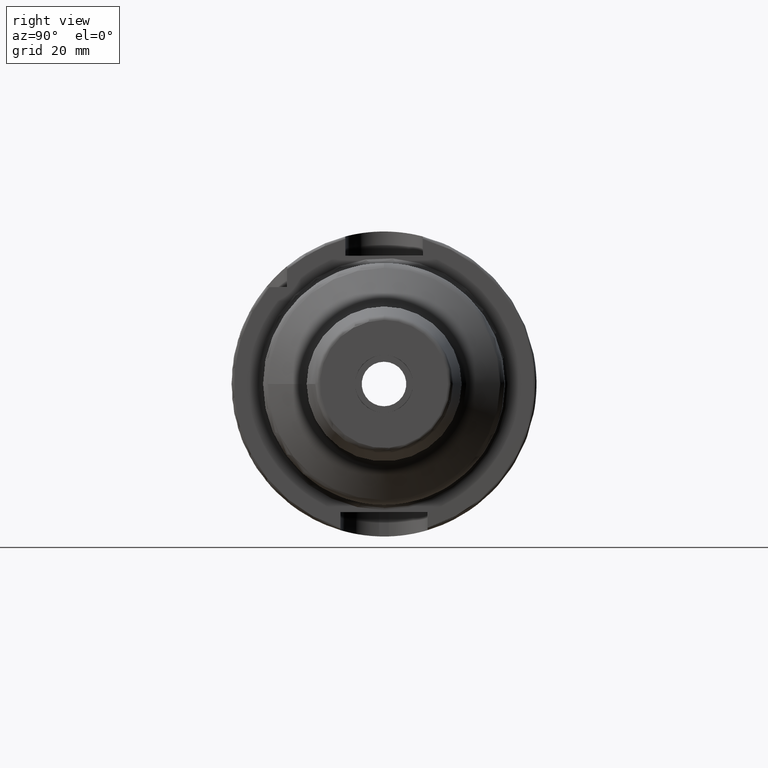
[diagram: clean part render]
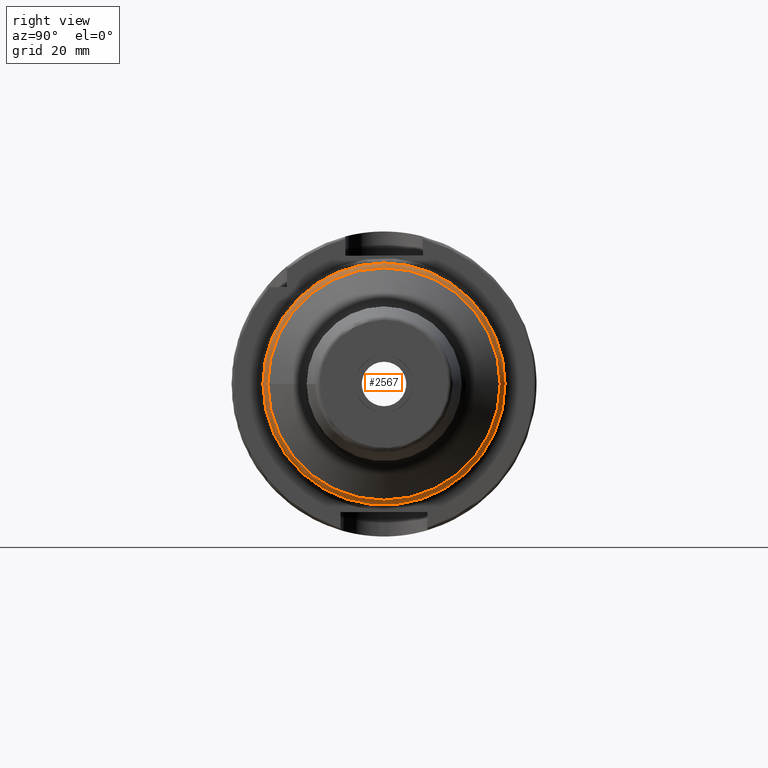
[diagram: same view with one face highlighted and labeled with its STEP entity id]
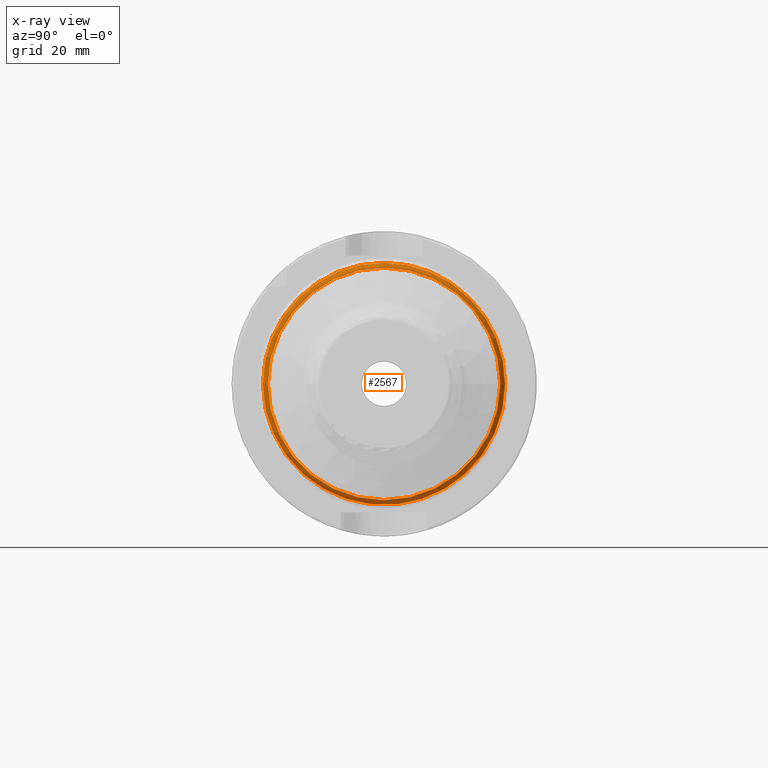
[diagram: x-ray of the same camera — body ghosted, the highlighted face saturated]
A machine part, right view. The second image highlights one B-rep face of the part: STEP entity #2567.
The next image is the same camera in x-ray: the body ghosted, the highlighted face saturated — about 0% of this face is hidden behind the body in this view.
In plain terms, the highlighted toroidal blend (fillet) surface has major radius 23 mm and minor (blend) radius 2 mm.
Its self-contained STEP definition (entity closure, byte-faithful):
#98=TOROIDAL_SURFACE('',#2749,23.,2.);
#213=FACE_OUTER_BOUND('',#351,.T.);
#351=EDGE_LOOP('',(#1724,#1725,#1726,#1727,#1728,#1729,#1730,#1731));
#741=CIRCLE('',#2742,24.);
#742=CIRCLE('',#2743,24.);
#743=CIRCLE('',#2744,24.);
#747=CIRCLE('',#2750,2.);
#748=CIRCLE('',#2751,25.);
#749=CIRCLE('',#2752,25.);
#750=CIRCLE('',#2753,25.);
#968=VERTEX_POINT('',#3995);
#969=VERTEX_POINT('',#3997);
#970=VERTEX_POINT('',#3999);
#974=VERTEX_POINT('',#4011);
#975=VERTEX_POINT('',#4013);
#976=VERTEX_POINT('',#4015);
#1270=EDGE_CURVE('',#969,#968,#741,.T.);
#1271=EDGE_CURVE('',#970,#969,#742,.T.);
#1272=EDGE_CURVE('',#968,#970,#743,.T.);
#1277=EDGE_CURVE('',#970,#974,#747,.T.);
#1278=EDGE_CURVE('',#974,#975,#748,.T.);
#1279=EDGE_CURVE('',#975,#976,#749,.T.);
#1280=EDGE_CURVE('',#976,#974,#750,.T.);
#1724=ORIENTED_EDGE('',*,*,#1270,.T.);
#1725=ORIENTED_EDGE('',*,*,#1272,.T.);
#1726=ORIENTED_EDGE('',*,*,#1277,.T.);
#1727=ORIENTED_EDGE('',*,*,#1278,.T.);
#1728=ORIENTED_EDGE('',*,*,#1279,.T.);
#1729=ORIENTED_EDGE('',*,*,#1280,.T.);
#1730=ORIENTED_EDGE('',*,*,#1277,.F.);
#1731=ORIENTED_EDGE('',*,*,#1271,.T.);
#2567=ADVANCED_FACE('',(#213),#98,.T.);
#2742=AXIS2_PLACEMENT_3D('',#3998,#3147,#3148);
#2743=AXIS2_PLACEMENT_3D('',#4000,#3149,#3150);
#2744=AXIS2_PLACEMENT_3D('',#4001,#3151,#3152);
#2749=AXIS2_PLACEMENT_3D('',#4010,#3162,#3163);
#2750=AXIS2_PLACEMENT_3D('',#4012,#3164,#3165);
#2751=AXIS2_PLACEMENT_3D('',#4014,#3166,#3167);
#2752=AXIS2_PLACEMENT_3D('',#4016,#3168,#3169);
#2753=AXIS2_PLACEMENT_3D('',#4017,#3170,#3171);
#3147=DIRECTION('center_axis',(-1.,0.,0.));
#3148=DIRECTION('ref_axis',(0.,-1.,3.06161699786838E-17));
#3149=DIRECTION('center_axis',(-1.,0.,0.));
#3150=DIRECTION('ref_axis',(0.,-1.,3.06161699786838E-17));
#3151=DIRECTION('center_axis',(-1.,0.,0.));
#3152=DIRECTION('ref_axis',(0.,-1.,3.06161699786838E-17));
#3162=DIRECTION('center_axis',(1.,0.,0.));
#3163=DIRECTION('ref_axis',(0.,0.,-1.));
#3164=DIRECTION('center_axis',(0.,-1.,-1.22464679914735E-16));
#3165=DIRECTION('ref_axis',(0.,-1.22464679914735E-16,1.));
#3166=DIRECTION('center_axis',(1.,0.,0.));
#3167=DIRECTION('ref_axis',(0.,-1.,1.83697019872103E-16));
#3168=DIRECTION('center_axis',(1.,0.,0.));
#3169=DIRECTION('ref_axis',(0.,-1.,1.83697019872103E-16));
#3170=DIRECTION('center_axis',(1.,0.,0.));
#3171=DIRECTION('ref_axis',(0.,-1.,1.83697019872103E-16));
#3995=CARTESIAN_POINT('',(45.381197846483,-24.,-2.93915231795365E-15));
#3997=CARTESIAN_POINT('',(45.381197846483,24.,-7.34788079488412E-15));
#3998=CARTESIAN_POINT('Origin',(45.381197846483,0.,-3.67394039744206E-15));
#3999=CARTESIAN_POINT('',(45.381197846483,-2.93915231795365E-15,24.));
#4000=CARTESIAN_POINT('Origin',(45.381197846483,0.,-3.67394039744206E-15));
#4001=CARTESIAN_POINT('Origin',(45.381197846483,0.,-3.67394039744206E-15));
#4010=CARTESIAN_POINT('Origin',(43.6491470389141,0.,0.));
#4011=CARTESIAN_POINT('',(43.6491470389141,-3.06161699786838E-15,25.));
#4012=CARTESIAN_POINT('Origin',(43.6491470389141,-2.81668763803891E-15,
23.));
#4013=CARTESIAN_POINT('',(43.6491470389141,-25.,-3.06161699786838E-15));
#4014=CARTESIAN_POINT('Origin',(43.6491470389141,0.,0.));
#4015=CARTESIAN_POINT('',(43.6491470389141,25.,-1.53080849893419E-15));
#4016=CARTESIAN_POINT('Origin',(43.6491470389141,0.,0.));
#4017=CARTESIAN_POINT('Origin',(43.6491470389141,0.,0.));